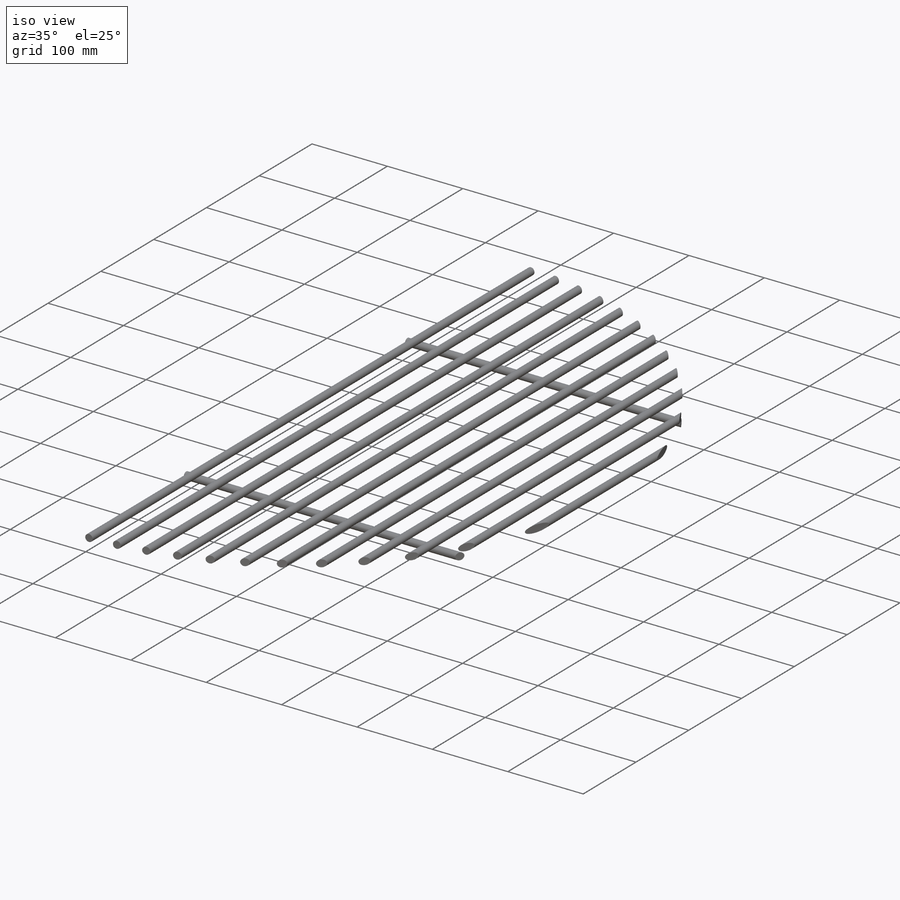
[diagram: iso view]
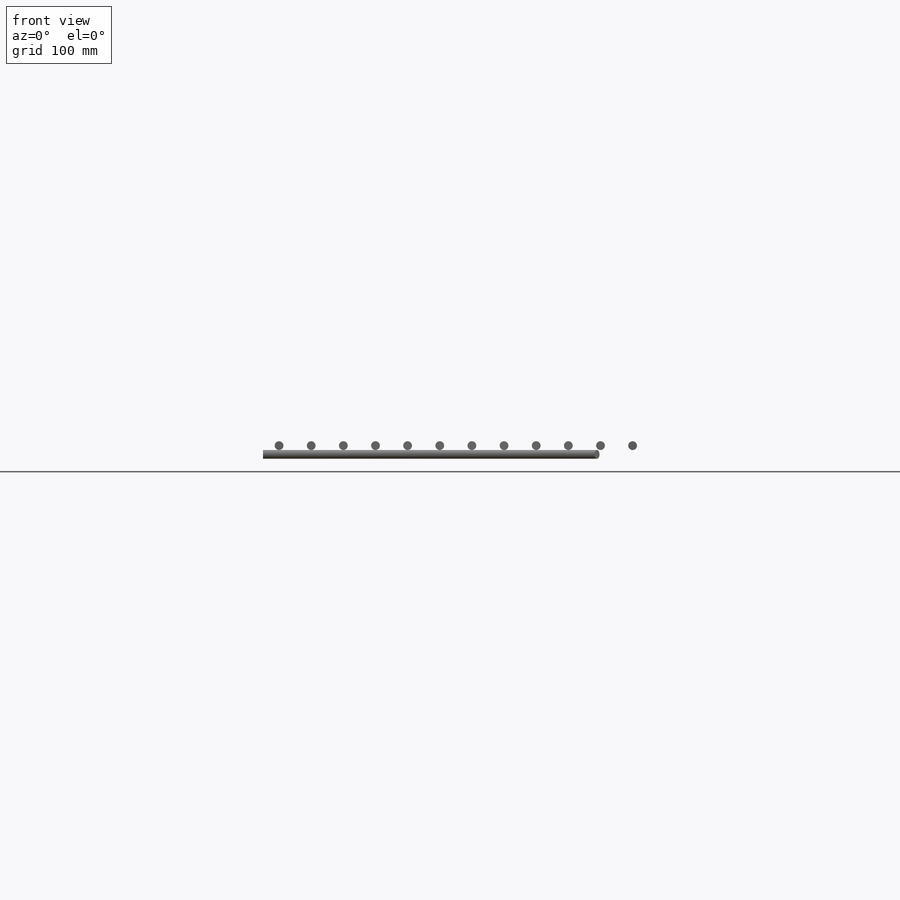
[diagram: front view]
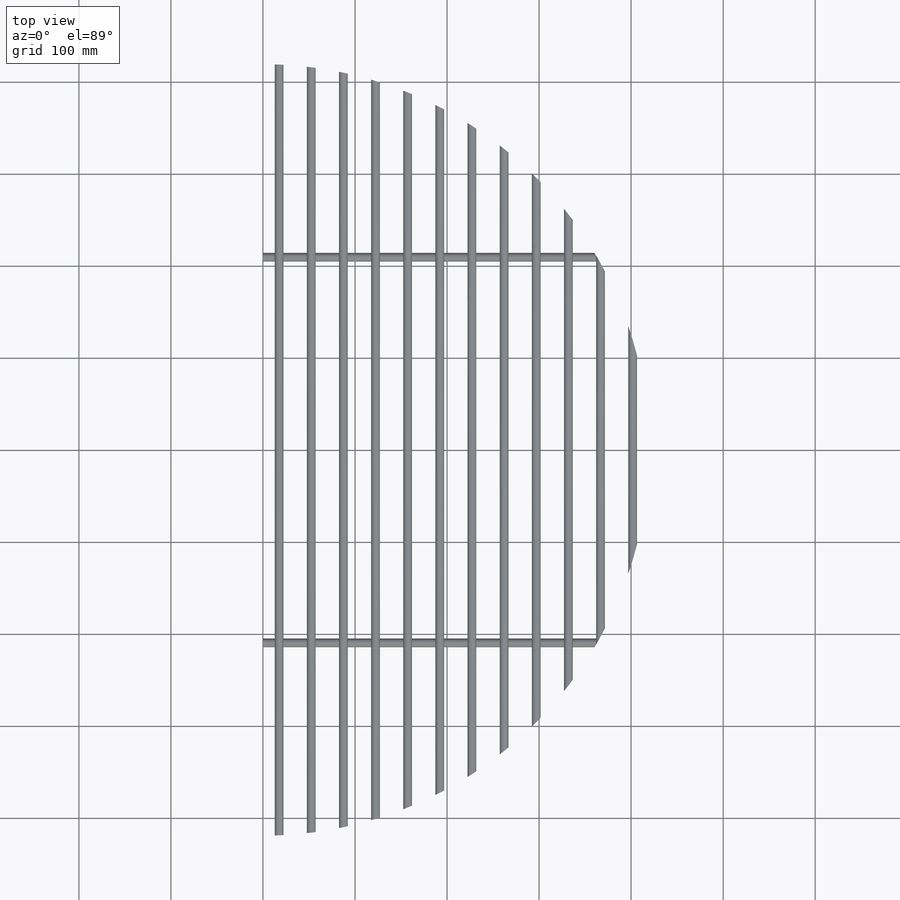
[diagram: top view]
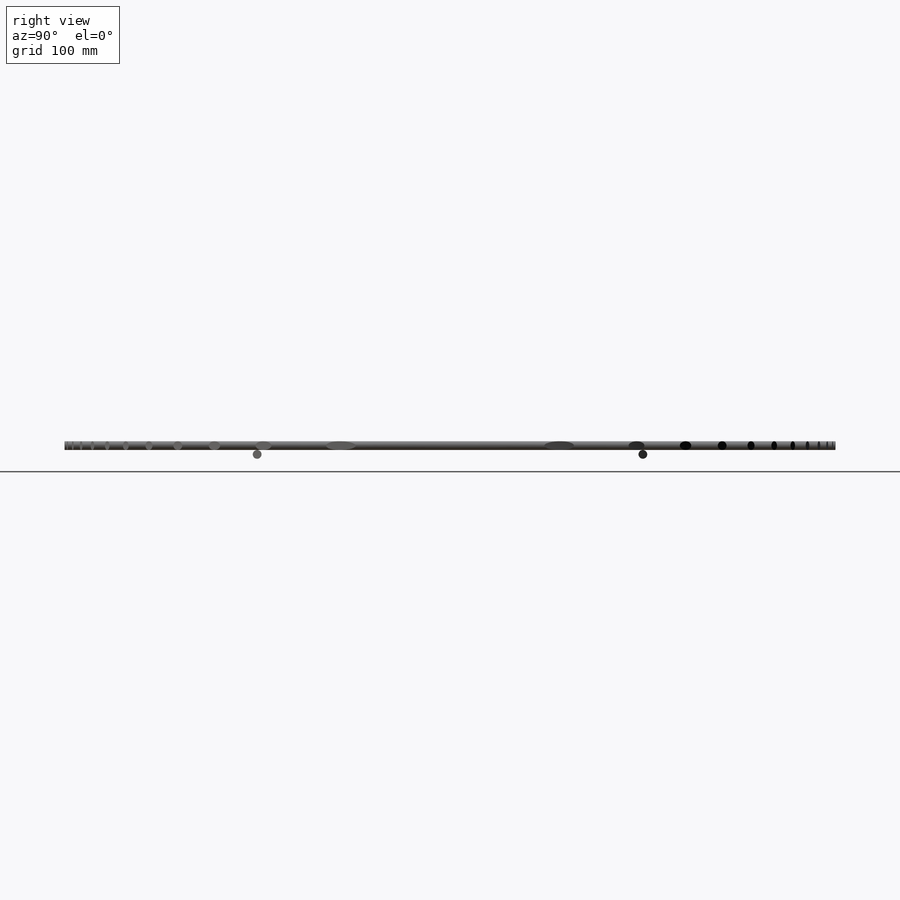
[diagram: right view]
SOLIDWORKS PART (.sldprt)
format: sldprt  version: not decoded by parser v0  size: 1,760,768 bytes
history: native  units: mm
features: sketch x3, extrude x2, material x1, cut_extrude x1 + 1 further entry (+12 scaffold rows collapsed)
feature tree (20):
  scaffold x12  (default folders/planes/origin — collapsed)
  material  "Material <not specified>"
  "Design Table"
  sketch  "Sketch1"  dims[MAIN_OD=304.8mm]
  sketch  "Sketch2"  dims[c1.BAR_R=6.35mm c1.D15=9.525mm c1.BAR_X=12.7mm c1.D3=6.35mm c1.D4=12.7mm c1.D5=12.7mm c1.D6=12.7mm c1.D7=12.7mm c1.D1=12.7mm c1.D2=12.7mm c1.D8=12.7mm c1.D9=12.7mm c1.D10=12.7mm c1.D11=12.7mm c1.D12=12.7mm c1.D13=12.7mm c1.D14=12.7mm c2.D15=12.7mm c2.D16=12.7mm]
  extrude  "Boss-Extrude1"  Depth=1524mm
  sketch  "Sketch3"  dims[BAR2_D=12.7mm BAR2_Y=76.2mm D2=12.7mm BAR2_H=6.35mm]
  extrude  "Boss-Extrude2"  Depth=991.108mm
  cut_extrude  "Cut-Extrude1"  [1 undecoded]
decode coverage: 5 of 6 modeling features carry decoded parameters; 1 rows unclassified (native names shown)
note: 1 parameter value undecoded
note: suppression state not decoded; provenance and decode notes live in map.json
